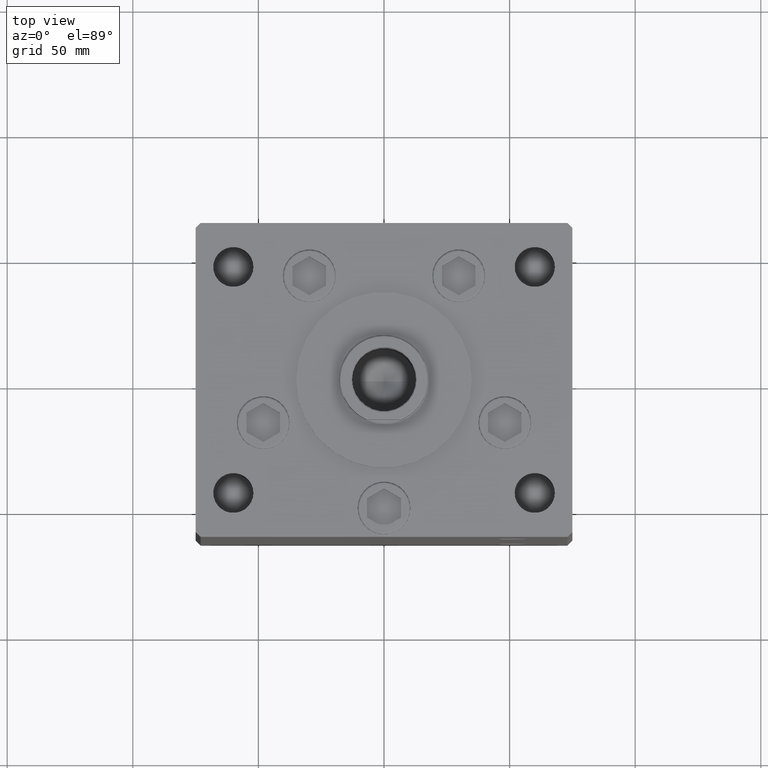
[diagram: clean part render]
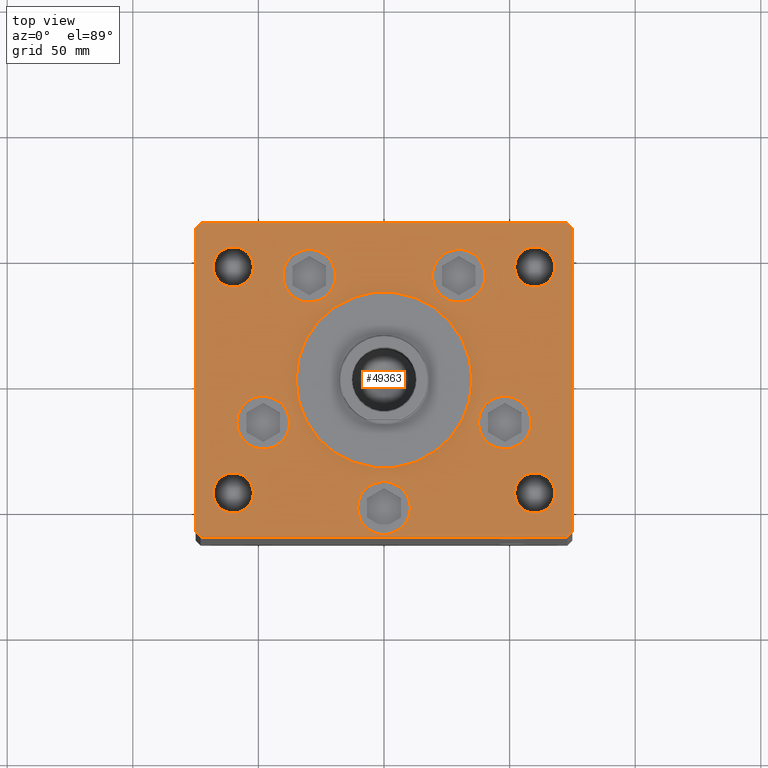
[diagram: same view with one face highlighted and labeled with its STEP entity id]
A machine part, top view. The second image highlights one B-rep face of the part: STEP entity #49363.
In plain terms, the highlighted planar face has unit normal (0, 0, 1).
Its self-contained STEP definition (entity closure, byte-faithful):
#125 = CARTESIAN_POINT ( 'NONE',  ( 60.00000000000000000, 45.00000000000000000, 0.000000000000000000 ) ) ;
#554 = EDGE_LOOP ( 'NONE', ( #36036, #32150 ) ) ;
#629 = EDGE_LOOP ( 'NONE', ( #8645, #3945 ) ) ;
#798 = CARTESIAN_POINT ( 'NONE',  ( 60.00000000000000000, 45.00000000000000000, 0.000000000000000000 ) ) ;
#1035 = AXIS2_PLACEMENT_3D ( 'NONE', #10370, #49882, #18015 ) ;
#1671 = CIRCLE ( 'NONE', #8400, 35.00000000000000711 ) ;
#1838 = FACE_BOUND ( 'NONE', #36437, .T. ) ;
#1848 = CARTESIAN_POINT ( 'NONE',  ( -75.00000000000000000, 60.50000000000000000, 0.000000000000000000 ) ) ;
#1856 = AXIS2_PLACEMENT_3D ( 'NONE', #29609, #16711, #24873 ) ;
#1872 = CARTESIAN_POINT ( 'NONE',  ( -52.00000000000000711, -45.00000000000000000, 0.000000000000000000 ) ) ;
#2324 = DIRECTION ( 'NONE',  ( 0.7071067811865474617, -0.7071067811865474617, 0.000000000000000000 ) ) ;
#2405 = CARTESIAN_POINT ( 'NONE',  ( 10.50000000000000000, -51.00000000000000000, 0.000000000000000000 ) ) ;
#2412 = CIRCLE ( 'NONE', #31840, 10.50000000000000178 ) ;
#2797 = DIRECTION ( 'NONE',  ( 1.000000000000000000, 0.000000000000000000, 0.000000000000000000 ) ) ;
#2924 = DIRECTION ( 'NONE',  ( -0.7071067811865524577, 0.7071067811865426878, 0.000000000000000000 ) ) ;
#2983 = CIRCLE ( 'NONE', #32408, 8.000000000000007105 ) ;
#3102 = CARTESIAN_POINT ( 'NONE',  ( -75.00000000000000000, -60.50000000000004263, 0.000000000000000000 ) ) ;
#3373 = CARTESIAN_POINT ( 'NONE',  ( 58.58326112068523628, -16.99999999999998934, 0.000000000000000000 ) ) ;
#3471 = VECTOR ( 'NONE', #2324, 1000.000000000000114 ) ;
#3589 = CARTESIAN_POINT ( 'NONE',  ( 52.00000000000000000, -45.00000000000000000, 0.000000000000000000 ) ) ;
#3758 = VERTEX_POINT ( 'NONE', #15491 ) ;
#3791 = EDGE_LOOP ( 'NONE', ( #4254, #6123 ) ) ;
#3945 = ORIENTED_EDGE ( 'NONE', *, *, #16097, .F. ) ;
#4254 = ORIENTED_EDGE ( 'NONE', *, *, #23001, .F. ) ;
#4276 = DIRECTION ( 'NONE',  ( 0.000000000000000000, 0.000000000000000000, 1.000000000000000000 ) ) ;
#4735 = CARTESIAN_POINT ( 'NONE',  ( -75.00000000000000000, 60.50000000000000000, 0.000000000000000000 ) ) ;
#4841 = VERTEX_POINT ( 'NONE', #3373 ) ;
#4900 = CARTESIAN_POINT ( 'NONE',  ( 0.000000000000000000, -51.00000000000000000, 0.000000000000000000 ) ) ;
#5512 = VERTEX_POINT ( 'NONE', #42458 ) ;
#6045 = FACE_BOUND ( 'NONE', #10087, .T. ) ;
#6123 = ORIENTED_EDGE ( 'NONE', *, *, #7224, .F. ) ;
#6236 = EDGE_CURVE ( 'NONE', #20617, #7928, #15001, .T. ) ;
#6611 = LINE ( 'NONE', #30593, #51608 ) ;
#6769 = EDGE_CURVE ( 'NONE', #30655, #13858, #17521, .T. ) ;
#7224 = EDGE_CURVE ( 'NONE', #16720, #12234, #2412, .T. ) ;
#7304 = DIRECTION ( 'NONE',  ( 1.000000000000000000, 0.000000000000000000, 0.000000000000000000 ) ) ;
#7854 = ORIENTED_EDGE ( 'NONE', *, *, #30626, .T. ) ;
#7928 = VERTEX_POINT ( 'NONE', #35550 ) ;
#8081 = DIRECTION ( 'NONE',  ( -0.000000000000000000, -0.000000000000000000, -1.000000000000000000 ) ) ;
#8179 = DIRECTION ( 'NONE',  ( 1.000000000000000000, 0.000000000000000000, 0.000000000000000000 ) ) ;
#8214 = AXIS2_PLACEMENT_3D ( 'NONE', #11788, #8081, #27854 ) ;
#8296 = DIRECTION ( 'NONE',  ( 0.000000000000000000, 0.000000000000000000, 1.000000000000000000 ) ) ;
#8400 = AXIS2_PLACEMENT_3D ( 'NONE', #17709, #45102, #9798 ) ;
#8645 = ORIENTED_EDGE ( 'NONE', *, *, #43623, .F. ) ;
#8756 = AXIS2_PLACEMENT_3D ( 'NONE', #22344, #29714, #46311 ) ;
#8786 = DIRECTION ( 'NONE',  ( 1.000000000000000000, 7.604267291953125828E-16, 0.000000000000000000 ) ) ;
#9061 = ORIENTED_EDGE ( 'NONE', *, *, #51700, .F. ) ;
#9169 = ORIENTED_EDGE ( 'NONE', *, *, #40594, .T. ) ;
#9204 = DIRECTION ( 'NONE',  ( 0.000000000000000000, 0.000000000000000000, 1.000000000000000000 ) ) ;
#9212 = AXIS2_PLACEMENT_3D ( 'NONE', #34683, #14666, #2797 ) ;
#9275 = AXIS2_PLACEMENT_3D ( 'NONE', #24306, #4276, #20363 ) ;
#9311 = LINE ( 'NONE', #14056, #25901 ) ;
#9798 = DIRECTION ( 'NONE',  ( 1.000000000000000000, 0.000000000000000000, 0.000000000000000000 ) ) ;
#9942 = VERTEX_POINT ( 'NONE', #24891 ) ;
#10087 = EDGE_LOOP ( 'NONE', ( #36177, #49110 ) ) ;
#10269 = FACE_BOUND ( 'NONE', #629, .T. ) ;
#10370 = CARTESIAN_POINT ( 'NONE',  ( -48.08326112068523628, -16.99999999999998934, 0.000000000000000000 ) ) ;
#10440 = CARTESIAN_POINT ( 'NONE',  ( -60.00000000000000711, -45.00000000000000000, 0.000000000000000000 ) ) ;
#10529 = PLANE ( 'NONE',  #31759 ) ;
#10542 = ORIENTED_EDGE ( 'NONE', *, *, #31477, .T. ) ;
#10788 = VERTEX_POINT ( 'NONE', #50700 ) ;
#11788 = CARTESIAN_POINT ( 'NONE',  ( 60.00000000000000711, -45.00000000000000000, 0.000000000000000000 ) ) ;
#12234 = VERTEX_POINT ( 'NONE', #26098 ) ;
#12406 = LINE ( 'NONE', #1848, #50040 ) ;
#12461 = ORIENTED_EDGE ( 'NONE', *, *, #33394, .F. ) ;
#12631 = VERTEX_POINT ( 'NONE', #32833 ) ;
#13027 = CARTESIAN_POINT ( 'NONE',  ( -10.50000000000000000, -51.00000000000000000, 0.000000000000000000 ) ) ;
#13227 = EDGE_CURVE ( 'NONE', #45754, #47498, #31882, .T. ) ;
#13858 = VERTEX_POINT ( 'NONE', #13027 ) ;
#13966 = ORIENTED_EDGE ( 'NONE', *, *, #20601, .T. ) ;
#14056 = CARTESIAN_POINT ( 'NONE',  ( -73.00000000000001421, -62.50000000000002842, 0.000000000000000000 ) ) ;
#14151 = CARTESIAN_POINT ( 'NONE',  ( 0.000000000000000000, -6.938893903907228378E-15, 0.000000000000000000 ) ) ;
#14389 = EDGE_LOOP ( 'NONE', ( #46068, #37286 ) ) ;
#14423 = DIRECTION ( 'NONE',  ( -1.000000000000000000, 0.000000000000000000, 0.000000000000000000 ) ) ;
#14424 = VERTEX_POINT ( 'NONE', #27664 ) ;
#14592 = VERTEX_POINT ( 'NONE', #26316 ) ;
#14666 = DIRECTION ( 'NONE',  ( 0.000000000000000000, 0.000000000000000000, 1.000000000000000000 ) ) ;
#14909 = DIRECTION ( 'NONE',  ( 0.000000000000000000, 0.000000000000000000, 1.000000000000000000 ) ) ;
#14982 = EDGE_CURVE ( 'NONE', #5512, #4841, #31097, .T. ) ;
#15001 = CIRCLE ( 'NONE', #52047, 7.999999999999992895 ) ;
#15491 = CARTESIAN_POINT ( 'NONE',  ( -35.00000000000000711, -6.938893903907228378E-15, 0.000000000000000000 ) ) ;
#15540 = CARTESIAN_POINT ( 'NONE',  ( 40.23102073172061921, 41.43749999999997868, 0.000000000000000000 ) ) ;
#15729 = EDGE_CURVE ( 'NONE', #46778, #3758, #19364, .T. ) ;
#15734 = AXIS2_PLACEMENT_3D ( 'NONE', #31776, #51802, #20195 ) ;
#16097 = EDGE_CURVE ( 'NONE', #43425, #47668, #34520, .T. ) ;
#16179 = EDGE_CURVE ( 'NONE', #3758, #46778, #1671, .T. ) ;
#16711 = DIRECTION ( 'NONE',  ( -0.000000000000000000, -0.000000000000000000, -1.000000000000000000 ) ) ;
#16720 = VERTEX_POINT ( 'NONE', #29112 ) ;
#17107 = CARTESIAN_POINT ( 'NONE',  ( 29.73102073172061921, 41.43749999999997868, 0.000000000000000000 ) ) ;
#17141 = DIRECTION ( 'NONE',  ( 0.000000000000000000, 0.000000000000000000, 1.000000000000000000 ) ) ;
#17521 = CIRCLE ( 'NONE', #44438, 10.50000000000000000 ) ;
#17709 = CARTESIAN_POINT ( 'NONE',  ( 0.000000000000000000, -6.938893903907228378E-15, 0.000000000000000000 ) ) ;
#18015 = DIRECTION ( 'NONE',  ( 1.000000000000000000, 0.000000000000000000, 0.000000000000000000 ) ) ;
#18453 = DIRECTION ( 'NONE',  ( 0.000000000000000000, 1.000000000000000000, 0.000000000000000000 ) ) ;
#18586 = DIRECTION ( 'NONE',  ( 1.000000000000000000, 0.000000000000000000, 0.000000000000000000 ) ) ;
#18639 = DIRECTION ( 'NONE',  ( -0.000000000000000000, -0.000000000000000000, -1.000000000000000000 ) ) ;
#18881 = ORIENTED_EDGE ( 'NONE', *, *, #26827, .T. ) ;
#18964 = LINE ( 'NONE', #38464, #25781 ) ;
#19364 = CIRCLE ( 'NONE', #29438, 35.00000000000000711 ) ;
#20195 = DIRECTION ( 'NONE',  ( 1.000000000000000000, 0.000000000000000000, 0.000000000000000000 ) ) ;
#20363 = DIRECTION ( 'NONE',  ( 1.000000000000000000, 0.000000000000000000, 0.000000000000000000 ) ) ;
#20380 = CARTESIAN_POINT ( 'NONE',  ( 51.99999999999999289, 45.00000000000000000, 0.000000000000000000 ) ) ;
#20532 = CARTESIAN_POINT ( 'NONE',  ( -40.23102073172061921, 41.43749999999997868, 0.000000000000000000 ) ) ;
#20601 = EDGE_CURVE ( 'NONE', #12631, #14592, #22358, .T. ) ;
#20617 = VERTEX_POINT ( 'NONE', #50799 ) ;
#20804 = DIRECTION ( 'NONE',  ( 1.000000000000000000, 0.000000000000000000, 0.000000000000000000 ) ) ;
#20832 = EDGE_LOOP ( 'NONE', ( #33392, #27348 ) ) ;
#21162 = CARTESIAN_POINT ( 'NONE',  ( 75.00000000000001421, -60.49999999999992184, 0.000000000000000000 ) ) ;
#21276 = VERTEX_POINT ( 'NONE', #27404 ) ;
#21279 = AXIS2_PLACEMENT_3D ( 'NONE', #125, #8296, #28059 ) ;
#21327 = ORIENTED_EDGE ( 'NONE', *, *, #6769, .F. ) ;
#21463 = CIRCLE ( 'NONE', #28999, 10.50000000000000000 ) ;
#21816 = EDGE_CURVE ( 'NONE', #38547, #9942, #43896, .T. ) ;
#21878 = FACE_BOUND ( 'NONE', #20832, .T. ) ;
#22135 = CARTESIAN_POINT ( 'NONE',  ( 0.000000000000000000, 0.000000000000000000, 0.000000000000000000 ) ) ;
#22344 = CARTESIAN_POINT ( 'NONE',  ( -60.00000000000000711, -45.00000000000000000, 0.000000000000000000 ) ) ;
#22358 = LINE ( 'NONE', #3102, #3471 ) ;
#22368 = VECTOR ( 'NONE', #30439, 999.9999999999998863 ) ;
#22395 = FACE_BOUND ( 'NONE', #22428, .T. ) ;
#22428 = EDGE_LOOP ( 'NONE', ( #21327, #47559 ) ) ;
#22788 = CARTESIAN_POINT ( 'NONE',  ( -48.08326112068523628, -16.99999999999998934, 0.000000000000000000 ) ) ;
#23001 = EDGE_CURVE ( 'NONE', #12234, #16720, #41415, .T. ) ;
#23387 = CIRCLE ( 'NONE', #8214, 8.000000000000007105 ) ;
#24306 = CARTESIAN_POINT ( 'NONE',  ( -29.73102073172061921, 41.43749999999997868, 0.000000000000000000 ) ) ;
#24873 = DIRECTION ( 'NONE',  ( -1.000000000000000000, 0.000000000000000000, 0.000000000000000000 ) ) ;
#24891 = CARTESIAN_POINT ( 'NONE',  ( -68.00000000000000000, -45.00000000000000000, 0.000000000000000000 ) ) ;
#25180 = AXIS2_PLACEMENT_3D ( 'NONE', #17107, #9204, #20804 ) ;
#25554 = FACE_BOUND ( 'NONE', #45152, .T. ) ;
#25781 = VECTOR ( 'NONE', #18453, 1000.000000000000000 ) ;
#25812 = DIRECTION ( 'NONE',  ( -0.000000000000000000, 0.000000000000000000, 1.000000000000000000 ) ) ;
#25901 = VECTOR ( 'NONE', #8786, 1000.000000000000000 ) ;
#26098 = CARTESIAN_POINT ( 'NONE',  ( -37.58326112068522917, -16.99999999999998934, 0.000000000000000000 ) ) ;
#26316 = CARTESIAN_POINT ( 'NONE',  ( -73.00000000000001421, -62.50000000000002842, 0.000000000000000000 ) ) ;
#26336 = FACE_BOUND ( 'NONE', #14389, .T. ) ;
#26555 = CARTESIAN_POINT ( 'NONE',  ( -29.73102073172061921, 41.43749999999997868, 0.000000000000000000 ) ) ;
#26670 = ORIENTED_EDGE ( 'NONE', *, *, #14982, .F. ) ;
#26827 = EDGE_CURVE ( 'NONE', #46631, #36159, #51495, .T. ) ;
#27348 = ORIENTED_EDGE ( 'NONE', *, *, #15729, .F. ) ;
#27404 = CARTESIAN_POINT ( 'NONE',  ( 68.00000000000000000, 45.00000000000000000, 0.000000000000000000 ) ) ;
#27466 = EDGE_CURVE ( 'NONE', #41927, #21276, #44789, .T. ) ;
#27664 = CARTESIAN_POINT ( 'NONE',  ( 73.00000000000001421, -62.49999999999991473, 0.000000000000000000 ) ) ;
#27854 = DIRECTION ( 'NONE',  ( -1.000000000000000000, 0.000000000000000000, 0.000000000000000000 ) ) ;
#27925 = AXIS2_PLACEMENT_3D ( 'NONE', #10440, #14909, #30976 ) ;
#28059 = DIRECTION ( 'NONE',  ( 1.000000000000000000, 0.000000000000000000, 0.000000000000000000 ) ) ;
#28999 = AXIS2_PLACEMENT_3D ( 'NONE', #4900, #45204, #40209 ) ;
#29112 = CARTESIAN_POINT ( 'NONE',  ( -58.58326112068523628, -16.99999999999998934, 0.000000000000000000 ) ) ;
#29438 = AXIS2_PLACEMENT_3D ( 'NONE', #14151, #34166, #45504 ) ;
#29609 = CARTESIAN_POINT ( 'NONE',  ( 60.00000000000000711, -45.00000000000000000, 0.000000000000000000 ) ) ;
#29714 = DIRECTION ( 'NONE',  ( 0.000000000000000000, 0.000000000000000000, 1.000000000000000000 ) ) ;
#29722 = VECTOR ( 'NONE', #2924, 1000.000000000000000 ) ;
#30175 = LINE ( 'NONE', #33080, #22368 ) ;
#30439 = DIRECTION ( 'NONE',  ( 0.7071067811865489050, 0.7071067811865462405, 0.000000000000000000 ) ) ;
#30486 = CARTESIAN_POINT ( 'NONE',  ( -60.00000000000000000, 45.00000000000000711, 0.000000000000000000 ) ) ;
#30562 = ORIENTED_EDGE ( 'NONE', *, *, #39941, .T. ) ;
#30593 = CARTESIAN_POINT ( 'NONE',  ( -72.99999999999998579, 62.49999999999997158, 0.000000000000000000 ) ) ;
#30626 = EDGE_CURVE ( 'NONE', #10788, #46730, #6611, .T. ) ;
#30655 = VERTEX_POINT ( 'NONE', #2405 ) ;
#30976 = DIRECTION ( 'NONE',  ( 1.000000000000000000, 0.000000000000000000, 0.000000000000000000 ) ) ;
#31097 = CIRCLE ( 'NONE', #9212, 10.50000000000000178 ) ;
#31243 = VERTEX_POINT ( 'NONE', #40872 ) ;
#31477 = EDGE_CURVE ( 'NONE', #40636, #31243, #46919, .T. ) ;
#31759 = AXIS2_PLACEMENT_3D ( 'NONE', #22135, #25812, #50577 ) ;
#31776 = CARTESIAN_POINT ( 'NONE',  ( 29.73102073172061921, 41.43749999999997868, 0.000000000000000000 ) ) ;
#31807 = VECTOR ( 'NONE', #35317, 1000.000000000000000 ) ;
#31840 = AXIS2_PLACEMENT_3D ( 'NONE', #22788, #34383, #18586 ) ;
#31882 = CIRCLE ( 'NONE', #25180, 10.50000000000000178 ) ;
#32150 = ORIENTED_EDGE ( 'NONE', *, *, #47894, .F. ) ;
#32408 = AXIS2_PLACEMENT_3D ( 'NONE', #798, #17141, #8179 ) ;
#32449 = AXIS2_PLACEMENT_3D ( 'NONE', #41254, #49411, #43071 ) ;
#32608 = CARTESIAN_POINT ( 'NONE',  ( 0.000000000000000000, -51.00000000000000000, 0.000000000000000000 ) ) ;
#32833 = CARTESIAN_POINT ( 'NONE',  ( -75.00000000000000000, -60.50000000000004263, 0.000000000000000000 ) ) ;
#33080 = CARTESIAN_POINT ( 'NONE',  ( 73.00000000000001421, -62.49999999999991473, 0.000000000000000000 ) ) ;
#33392 = ORIENTED_EDGE ( 'NONE', *, *, #16179, .F. ) ;
#33394 = EDGE_CURVE ( 'NONE', #9942, #38547, #42446, .T. ) ;
#33617 = DIRECTION ( 'NONE',  ( 0.000000000000000000, 0.000000000000000000, 1.000000000000000000 ) ) ;
#34166 = DIRECTION ( 'NONE',  ( 0.000000000000000000, 0.000000000000000000, 1.000000000000000000 ) ) ;
#34383 = DIRECTION ( 'NONE',  ( 0.000000000000000000, 0.000000000000000000, 1.000000000000000000 ) ) ;
#34520 = CIRCLE ( 'NONE', #9275, 10.50000000000000178 ) ;
#34634 = EDGE_CURVE ( 'NONE', #13858, #30655, #21463, .T. ) ;
#34683 = CARTESIAN_POINT ( 'NONE',  ( 48.08326112068523628, -16.99999999999998934, 0.000000000000000000 ) ) ;
#34765 = FACE_OUTER_BOUND ( 'NONE', #51583, .T. ) ;
#34843 = ORIENTED_EDGE ( 'NONE', *, *, #47588, .T. ) ;
#35317 = DIRECTION ( 'NONE',  ( -1.000000000000000000, -1.901066822988281950E-16, 0.000000000000000000 ) ) ;
#35550 = CARTESIAN_POINT ( 'NONE',  ( -67.99999999999998579, 45.00000000000000711, 0.000000000000000000 ) ) ;
#35601 = EDGE_LOOP ( 'NONE', ( #9061, #26670 ) ) ;
#35798 = DIRECTION ( 'NONE',  ( 0.000000000000000000, 0.000000000000000000, 1.000000000000000000 ) ) ;
#35946 = ORIENTED_EDGE ( 'NONE', *, *, #42270, .T. ) ;
#36036 = ORIENTED_EDGE ( 'NONE', *, *, #13227, .F. ) ;
#36041 = CIRCLE ( 'NONE', #47807, 10.50000000000000178 ) ;
#36159 = VERTEX_POINT ( 'NONE', #3589 ) ;
#36177 = ORIENTED_EDGE ( 'NONE', *, *, #36511, .F. ) ;
#36339 = ORIENTED_EDGE ( 'NONE', *, *, #40349, .T. ) ;
#36437 = EDGE_LOOP ( 'NONE', ( #18881, #9169 ) ) ;
#36511 = EDGE_CURVE ( 'NONE', #21276, #41927, #2983, .T. ) ;
#36744 = ORIENTED_EDGE ( 'NONE', *, *, #37087, .T. ) ;
#37087 = EDGE_CURVE ( 'NONE', #14424, #48388, #30175, .T. ) ;
#37161 = DIRECTION ( 'NONE',  ( 0.000000000000000000, -1.000000000000000000, 0.000000000000000000 ) ) ;
#37286 = ORIENTED_EDGE ( 'NONE', *, *, #37996, .T. ) ;
#37996 = EDGE_CURVE ( 'NONE', #7928, #20617, #48433, .T. ) ;
#38464 = CARTESIAN_POINT ( 'NONE',  ( 75.00000000000001421, -60.49999999999992184, 0.000000000000000000 ) ) ;
#38547 = VERTEX_POINT ( 'NONE', #1872 ) ;
#38933 = DIRECTION ( 'NONE',  ( 0.000000000000000000, 0.000000000000000000, 1.000000000000000000 ) ) ;
#39259 = DIRECTION ( 'NONE',  ( -0.7071067811865549002, -0.7071067811865401342, 0.000000000000000000 ) ) ;
#39765 = CARTESIAN_POINT ( 'NONE',  ( 73.00000000000001421, 62.50000000000000000, 0.000000000000000000 ) ) ;
#39941 = EDGE_CURVE ( 'NONE', #14592, #14424, #9311, .T. ) ;
#40209 = DIRECTION ( 'NONE',  ( 1.000000000000000000, 0.000000000000000000, 0.000000000000000000 ) ) ;
#40349 = EDGE_CURVE ( 'NONE', #31243, #10788, #44500, .T. ) ;
#40594 = EDGE_CURVE ( 'NONE', #36159, #46631, #23387, .T. ) ;
#40636 = VERTEX_POINT ( 'NONE', #44436 ) ;
#40872 = CARTESIAN_POINT ( 'NONE',  ( 73.00000000000001421, 62.50000000000000000, 0.000000000000000000 ) ) ;
#41150 = ORIENTED_EDGE ( 'NONE', *, *, #21816, .F. ) ;
#41254 = CARTESIAN_POINT ( 'NONE',  ( -60.00000000000000000, 45.00000000000000711, 0.000000000000000000 ) ) ;
#41415 = CIRCLE ( 'NONE', #1035, 10.50000000000000178 ) ;
#41927 = VERTEX_POINT ( 'NONE', #20380 ) ;
#42042 = CARTESIAN_POINT ( 'NONE',  ( 48.08326112068523628, -16.99999999999998934, 0.000000000000000000 ) ) ;
#42146 = CARTESIAN_POINT ( 'NONE',  ( 35.00000000000000711, -2.652630106891490698E-15, 0.000000000000000000 ) ) ;
#42270 = EDGE_CURVE ( 'NONE', #46730, #12631, #12406, .T. ) ;
#42446 = CIRCLE ( 'NONE', #8756, 8.000000000000000000 ) ;
#42458 = CARTESIAN_POINT ( 'NONE',  ( 37.58326112068522917, -16.99999999999998934, 0.000000000000000000 ) ) ;
#42636 = CIRCLE ( 'NONE', #15734, 10.50000000000000178 ) ;
#42970 = CARTESIAN_POINT ( 'NONE',  ( 75.00000000000001421, 60.50000000000002842, 0.000000000000000000 ) ) ;
#43071 = DIRECTION ( 'NONE',  ( -1.000000000000000000, 0.000000000000000000, 0.000000000000000000 ) ) ;
#43425 = VERTEX_POINT ( 'NONE', #20532 ) ;
#43473 = CARTESIAN_POINT ( 'NONE',  ( 68.00000000000000000, -45.00000000000000000, 0.000000000000000000 ) ) ;
#43623 = EDGE_CURVE ( 'NONE', #47668, #43425, #44159, .T. ) ;
#43896 = CIRCLE ( 'NONE', #27925, 8.000000000000000000 ) ;
#44159 = CIRCLE ( 'NONE', #51729, 10.50000000000000178 ) ;
#44436 = CARTESIAN_POINT ( 'NONE',  ( 75.00000000000001421, 60.50000000000002842, 0.000000000000000000 ) ) ;
#44438 = AXIS2_PLACEMENT_3D ( 'NONE', #32608, #35798, #48163 ) ;
#44500 = LINE ( 'NONE', #39765, #31807 ) ;
#44789 = CIRCLE ( 'NONE', #21279, 8.000000000000007105 ) ;
#45102 = DIRECTION ( 'NONE',  ( 0.000000000000000000, 0.000000000000000000, 1.000000000000000000 ) ) ;
#45152 = EDGE_LOOP ( 'NONE', ( #41150, #12461 ) ) ;
#45204 = DIRECTION ( 'NONE',  ( 0.000000000000000000, 0.000000000000000000, 1.000000000000000000 ) ) ;
#45504 = DIRECTION ( 'NONE',  ( 1.000000000000000000, 0.000000000000000000, 0.000000000000000000 ) ) ;
#45754 = VERTEX_POINT ( 'NONE', #15540 ) ;
#46068 = ORIENTED_EDGE ( 'NONE', *, *, #6236, .T. ) ;
#46094 = CARTESIAN_POINT ( 'NONE',  ( 19.23102073172061566, 41.43749999999997868, 0.000000000000000000 ) ) ;
#46311 = DIRECTION ( 'NONE',  ( 1.000000000000000000, 0.000000000000000000, 0.000000000000000000 ) ) ;
#46362 = FACE_BOUND ( 'NONE', #3791, .T. ) ;
#46617 = FACE_BOUND ( 'NONE', #554, .T. ) ;
#46631 = VERTEX_POINT ( 'NONE', #43473 ) ;
#46730 = VERTEX_POINT ( 'NONE', #4735 ) ;
#46778 = VERTEX_POINT ( 'NONE', #42146 ) ;
#46919 = LINE ( 'NONE', #42970, #29722 ) ;
#47498 = VERTEX_POINT ( 'NONE', #46094 ) ;
#47559 = ORIENTED_EDGE ( 'NONE', *, *, #34634, .F. ) ;
#47588 = EDGE_CURVE ( 'NONE', #48388, #40636, #18964, .T. ) ;
#47668 = VERTEX_POINT ( 'NONE', #49727 ) ;
#47807 = AXIS2_PLACEMENT_3D ( 'NONE', #42042, #33617, #49675 ) ;
#47894 = EDGE_CURVE ( 'NONE', #47498, #45754, #42636, .T. ) ;
#48163 = DIRECTION ( 'NONE',  ( 1.000000000000000000, 0.000000000000000000, 0.000000000000000000 ) ) ;
#48388 = VERTEX_POINT ( 'NONE', #21162 ) ;
#48433 = CIRCLE ( 'NONE', #32449, 7.999999999999992895 ) ;
#49110 = ORIENTED_EDGE ( 'NONE', *, *, #27466, .F. ) ;
#49363 = ADVANCED_FACE ( 'NONE', ( #21878, #10269, #46617, #50833, #22395, #46362, #26336, #6045, #25554, #34765, #1838 ), #10529, .T. ) ;
#49411 = DIRECTION ( 'NONE',  ( -0.000000000000000000, -0.000000000000000000, -1.000000000000000000 ) ) ;
#49675 = DIRECTION ( 'NONE',  ( 1.000000000000000000, 0.000000000000000000, 0.000000000000000000 ) ) ;
#49727 = CARTESIAN_POINT ( 'NONE',  ( -19.23102073172061566, 41.43749999999997868, 0.000000000000000000 ) ) ;
#49882 = DIRECTION ( 'NONE',  ( 0.000000000000000000, 0.000000000000000000, 1.000000000000000000 ) ) ;
#50040 = VECTOR ( 'NONE', #37161, 1000.000000000000000 ) ;
#50577 = DIRECTION ( 'NONE',  ( 1.000000000000000000, 0.000000000000000000, 0.000000000000000000 ) ) ;
#50700 = CARTESIAN_POINT ( 'NONE',  ( -72.99999999999998579, 62.49999999999997158, 0.000000000000000000 ) ) ;
#50799 = CARTESIAN_POINT ( 'NONE',  ( -52.00000000000000000, 45.00000000000000711, 0.000000000000000000 ) ) ;
#50833 = FACE_BOUND ( 'NONE', #35601, .T. ) ;
#51495 = CIRCLE ( 'NONE', #1856, 8.000000000000007105 ) ;
#51583 = EDGE_LOOP ( 'NONE', ( #13966, #30562, #36744, #34843, #10542, #36339, #7854, #35946 ) ) ;
#51608 = VECTOR ( 'NONE', #39259, 1000.000000000000000 ) ;
#51700 = EDGE_CURVE ( 'NONE', #4841, #5512, #36041, .T. ) ;
#51729 = AXIS2_PLACEMENT_3D ( 'NONE', #26555, #38933, #7304 ) ;
#51802 = DIRECTION ( 'NONE',  ( 0.000000000000000000, 0.000000000000000000, 1.000000000000000000 ) ) ;
#52047 = AXIS2_PLACEMENT_3D ( 'NONE', #30486, #18639, #14423 ) ;